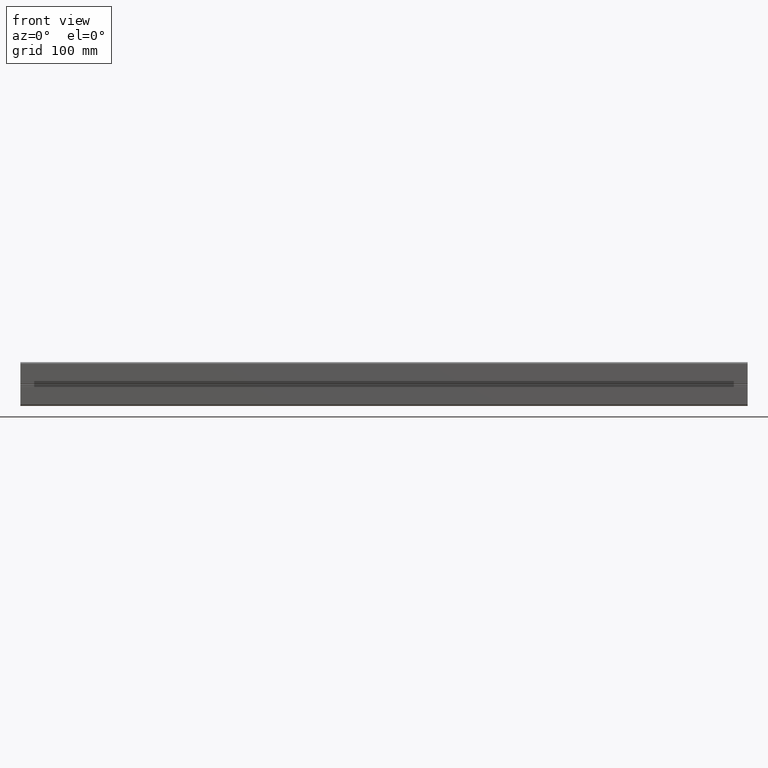
[diagram: clean part render]
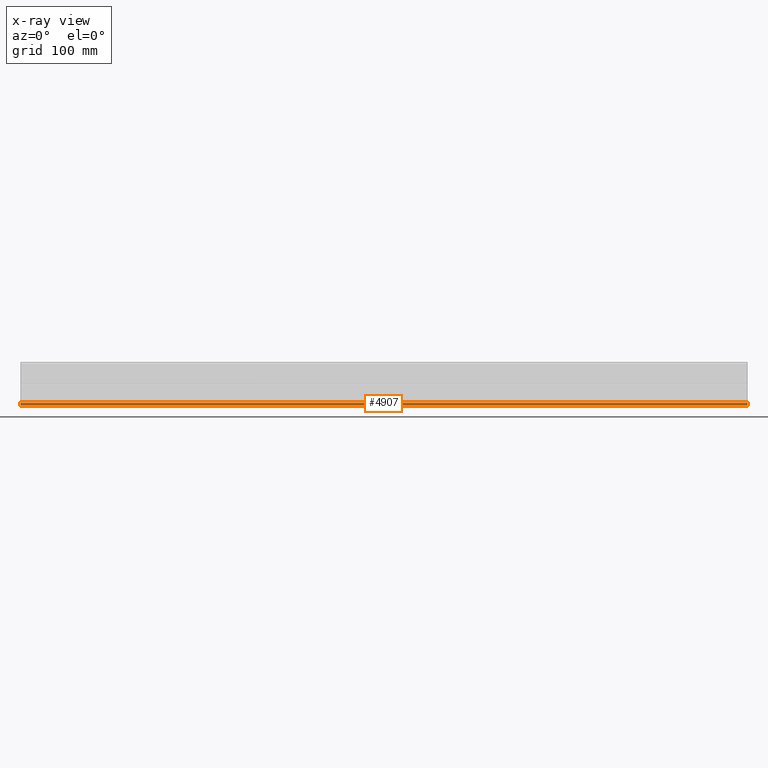
[diagram: x-ray — body ghosted, one internal face saturated and labeled with its STEP entity id]
A machine part, front view, then the same camera in x-ray: the body is ghosted and one INTERNAL B-rep face — a face not visible from any outside direction — is saturated and labeled: STEP entity #4907.
In plain terms, the highlighted planar face has unit normal (0, -1, 0).
Its self-contained STEP definition (entity closure, byte-faithful):
#379=FACE_OUTER_BOUND('',#623,.T.);
#623=EDGE_LOOP('',(#3693,#3694,#3695,#3696));
#1097=LINE('',#7600,#1687);
#1098=LINE('',#7602,#1688);
#1099=LINE('',#7604,#1689);
#1100=LINE('',#7605,#1690);
#1687=VECTOR('',#6178,10.);
#1688=VECTOR('',#6179,10.);
#1689=VECTOR('',#6180,10.);
#1690=VECTOR('',#6181,10.);
#2207=VERTEX_POINT('',#7598);
#2208=VERTEX_POINT('',#7599);
#2209=VERTEX_POINT('',#7601);
#2210=VERTEX_POINT('',#7603);
#2829=EDGE_CURVE('',#2207,#2208,#1097,.T.);
#2830=EDGE_CURVE('',#2207,#2209,#1098,.T.);
#2831=EDGE_CURVE('',#2210,#2209,#1099,.T.);
#2832=EDGE_CURVE('',#2208,#2210,#1100,.T.);
#3693=ORIENTED_EDGE('',*,*,#2829,.F.);
#3694=ORIENTED_EDGE('',*,*,#2830,.T.);
#3695=ORIENTED_EDGE('',*,*,#2831,.F.);
#3696=ORIENTED_EDGE('',*,*,#2832,.F.);
#4697=PLANE('',#5242);
#4907=ADVANCED_FACE('',(#379),#4697,.T.);
#5242=AXIS2_PLACEMENT_3D('',#7597,#6176,#6177);
#6176=DIRECTION('center_axis',(0.,-1.,0.));
#6177=DIRECTION('ref_axis',(0.,0.,-1.));
#6178=DIRECTION('',(0.,0.,1.));
#6179=DIRECTION('',(1.,0.,0.));
#6180=DIRECTION('',(0.,0.,-1.));
#6181=DIRECTION('',(1.,0.,0.));
#7597=CARTESIAN_POINT('Origin',(0.,4.14999999999825,-25.6999999999992));
#7598=CARTESIAN_POINT('',(0.,4.14999999999825,-29.9999999999993));
#7599=CARTESIAN_POINT('',(0.,4.14999999999825,-25.6999999999992));
#7600=CARTESIAN_POINT('',(0.,4.14999999999825,-29.9999999999993));
#7601=CARTESIAN_POINT('',(1000.,4.14999999999825,-29.9999999999993));
#7602=CARTESIAN_POINT('',(0.,4.14999999999825,-29.9999999999993));
#7603=CARTESIAN_POINT('',(1000.,4.14999999999825,-25.6999999999992));
#7604=CARTESIAN_POINT('',(1000.,4.14999999999825,-29.9999999999993));
#7605=CARTESIAN_POINT('',(0.,4.14999999999825,-25.6999999999992));